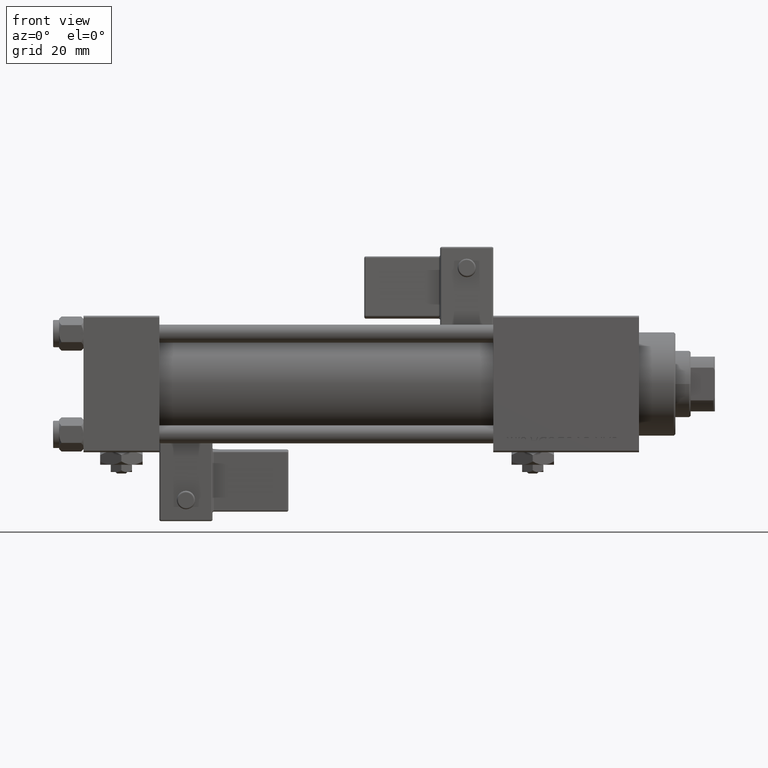
[diagram: clean part render]
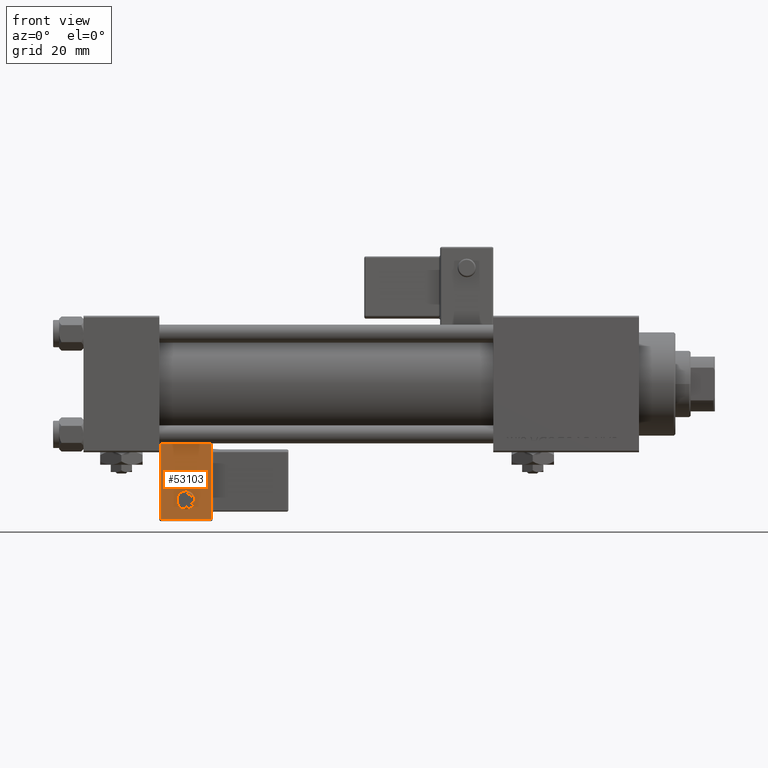
[diagram: same view with one face highlighted and labeled with its STEP entity id]
A machine part, front view. The second image highlights one B-rep face of the part: STEP entity #53103.
In plain terms, the highlighted planar face has unit normal (0, 0.9994, 0.0353).
Its self-contained STEP definition (entity closure, byte-faithful):
#725 = LINE ( 'NONE', #17354, #45727 ) ;
#3571 = CARTESIAN_POINT ( 'NONE',  ( -8.250000000000003553, -33.75000000000000000, 1.100882205908358788E-15 ) ) ;
#4606 = CARTESIAN_POINT ( 'NONE',  ( 0.000000000000000000, -33.75000000000000000, 0.000000000000000000 ) ) ;
#4625 = CARTESIAN_POINT ( 'NONE',  ( -8.250000000000003553, -33.75000000000000000, -0.5000000000000002220 ) ) ;
#4995 = CIRCLE ( 'NONE', #40160, 2.999999999999999112 ) ;
#5312 = EDGE_LOOP ( 'NONE', ( #36310, #45263, #46237, #17244 ) ) ;
#8539 = DIRECTION ( 'NONE',  ( 0.000000000000000000, 1.000000000000000000, 0.000000000000000000 ) ) ;
#8781 = CARTESIAN_POINT ( 'NONE',  ( 4.857225732735059864E-15, -33.75000000000000000, 24.50000000000000000 ) ) ;
#9459 = DIRECTION ( 'NONE',  ( 1.000000000000000000, 0.000000000000000000, 0.000000000000000000 ) ) ;
#11094 = EDGE_CURVE ( 'NONE', #30661, #43767, #20112, .T. ) ;
#12786 = PLANE ( 'NONE',  #44840 ) ;
#13346 = FACE_BOUND ( 'NONE', #40116, .T. ) ;
#13713 = DIRECTION ( 'NONE',  ( -1.334402673828313093E-16, 0.000000000000000000, -1.000000000000000000 ) ) ;
#13997 = VECTOR ( 'NONE', #16192, 1000.000000000000000 ) ;
#14576 = VERTEX_POINT ( 'NONE', #28577 ) ;
#15324 = VECTOR ( 'NONE', #47986, 1000.000000000000000 ) ;
#15677 = AXIS2_PLACEMENT_3D ( 'NONE', #22161, #30906, #35129 ) ;
#16192 = DIRECTION ( 'NONE',  ( -1.334402673828313339E-16, 0.000000000000000000, 1.000000000000000000 ) ) ;
#16456 = LINE ( 'NONE', #41592, #13997 ) ;
#17156 = VERTEX_POINT ( 'NONE', #4625 ) ;
#17244 = ORIENTED_EDGE ( 'NONE', *, *, #45320, .T. ) ;
#17354 = CARTESIAN_POINT ( 'NONE',  ( 0.000000000000000000, -33.75000000000000000, -0.5000000000000002220 ) ) ;
#19924 = VERTEX_POINT ( 'NONE', #43508 ) ;
#20112 = LINE ( 'NONE', #8781, #15324 ) ;
#22161 = CARTESIAN_POINT ( 'NONE',  ( -4.336808689942017736E-16, -33.75000000000000000, 6.000000000000001776 ) ) ;
#25167 = CARTESIAN_POINT ( 'NONE',  ( -4.336808689942017736E-16, -33.75000000000000000, 6.000000000000001776 ) ) ;
#25201 = CARTESIAN_POINT ( 'NONE',  ( 8.250000000000000000, -33.75000000000000000, 24.50000000000000000 ) ) ;
#27009 = ORIENTED_EDGE ( 'NONE', *, *, #41764, .F. ) ;
#28577 = CARTESIAN_POINT ( 'NONE',  ( 8.250000000000003553, -33.75000000000000000, -0.5000000000000002220 ) ) ;
#29231 = VECTOR ( 'NONE', #13713, 1000.000000000000000 ) ;
#29683 = DIRECTION ( 'NONE',  ( 0.000000000000000000, 0.000000000000000000, 1.000000000000000000 ) ) ;
#30661 = VERTEX_POINT ( 'NONE', #25201 ) ;
#30906 = DIRECTION ( 'NONE',  ( -0.000000000000000000, -1.000000000000000000, -0.000000000000000000 ) ) ;
#35075 = EDGE_CURVE ( 'NONE', #43767, #17156, #42231, .T. ) ;
#35129 = DIRECTION ( 'NONE',  ( 0.000000000000000000, 0.000000000000000000, 1.000000000000000000 ) ) ;
#36310 = ORIENTED_EDGE ( 'NONE', *, *, #11094, .T. ) ;
#39011 = DIRECTION ( 'NONE',  ( 0.000000000000000000, -0.000000000000000000, 1.000000000000000000 ) ) ;
#39081 = ORIENTED_EDGE ( 'NONE', *, *, #49141, .F. ) ;
#40116 = EDGE_LOOP ( 'NONE', ( #27009, #39081 ) ) ;
#40160 = AXIS2_PLACEMENT_3D ( 'NONE', #25167, #51652, #29683 ) ;
#41592 = CARTESIAN_POINT ( 'NONE',  ( 8.250000000000003553, -33.75000000000000000, 1.100882205908358986E-15 ) ) ;
#41764 = EDGE_CURVE ( 'NONE', #54058, #19924, #41779, .T. ) ;
#41779 = CIRCLE ( 'NONE', #15677, 2.999999999999999112 ) ;
#42231 = LINE ( 'NONE', #3571, #29231 ) ;
#43508 = CARTESIAN_POINT ( 'NONE',  ( -6.628682924999581145E-17, -33.75000000000000000, 3.000000000000001776 ) ) ;
#43767 = VERTEX_POINT ( 'NONE', #44301 ) ;
#44119 = CARTESIAN_POINT ( 'NONE',  ( -4.336808689942017736E-16, -33.75000000000000000, 9.000000000000001776 ) ) ;
#44301 = CARTESIAN_POINT ( 'NONE',  ( -8.250000000000000000, -33.75000000000000000, 24.50000000000000355 ) ) ;
#44840 = AXIS2_PLACEMENT_3D ( 'NONE', #4606, #8539, #39011 ) ;
#45263 = ORIENTED_EDGE ( 'NONE', *, *, #35075, .T. ) ;
#45320 = EDGE_CURVE ( 'NONE', #14576, #30661, #16456, .T. ) ;
#45727 = VECTOR ( 'NONE', #9459, 1000.000000000000000 ) ;
#46237 = ORIENTED_EDGE ( 'NONE', *, *, #52844, .T. ) ;
#47986 = DIRECTION ( 'NONE',  ( -1.000000000000000000, 0.000000000000000000, 1.982541115402065110E-16 ) ) ;
#49141 = EDGE_CURVE ( 'NONE', #19924, #54058, #4995, .T. ) ;
#51425 = FACE_OUTER_BOUND ( 'NONE', #5312, .T. ) ;
#51652 = DIRECTION ( 'NONE',  ( -0.000000000000000000, -1.000000000000000000, -0.000000000000000000 ) ) ;
#52844 = EDGE_CURVE ( 'NONE', #17156, #14576, #725, .T. ) ;
#53103 = ADVANCED_FACE ( 'NONE', ( #51425, #13346 ), #12786, .F. ) ;
#54058 = VERTEX_POINT ( 'NONE', #44119 ) ;